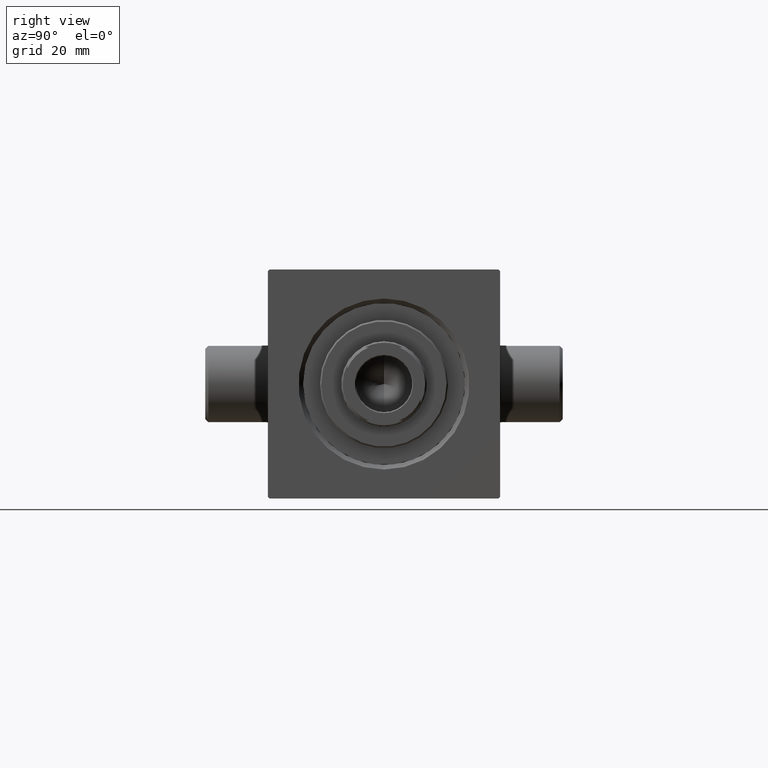
[diagram: clean part render]
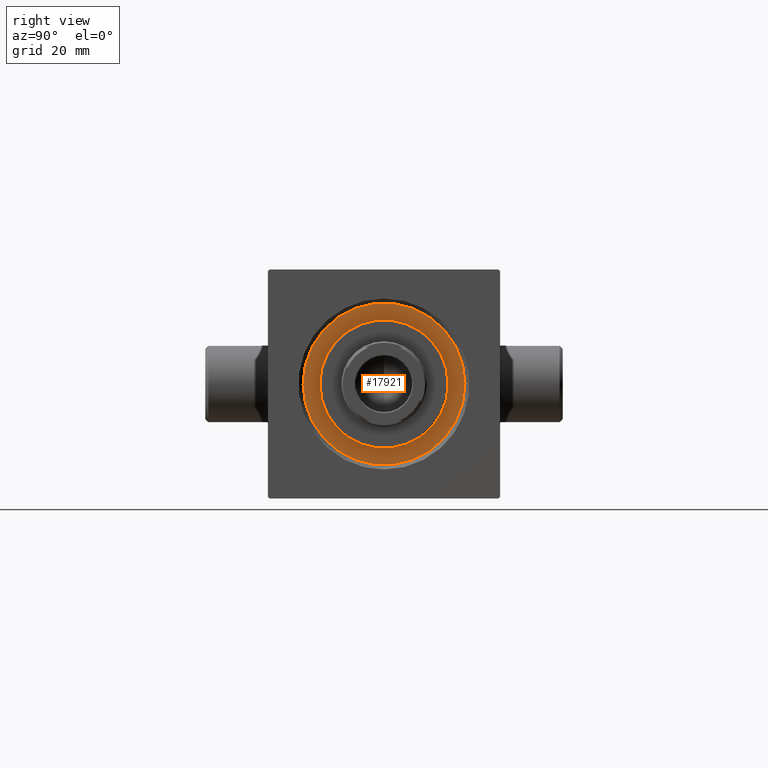
[diagram: same view with one face highlighted and labeled with its STEP entity id]
A machine part, right view. The second image highlights one B-rep face of the part: STEP entity #17921.
In plain terms, the highlighted planar face has unit normal (1, 0, 0).
Its self-contained STEP definition (entity closure, byte-faithful):
#1446 = AXIS2_PLACEMENT_3D ( 'NONE', #32319, #45697, #45929 ) ;
#1657 = VERTEX_POINT ( 'NONE', #36641 ) ;
#1720 = DIRECTION ( 'NONE',  ( 0.000000000000000000, 0.000000000000000000, 1.000000000000000000 ) ) ;
#3830 = ORIENTED_EDGE ( 'NONE', *, *, #44387, .T. ) ;
#4027 = CARTESIAN_POINT ( 'NONE',  ( 26.50000000000000355, 3.245314017740486554E-15, 26.69999999999999929 ) ) ;
#4371 = AXIS2_PLACEMENT_3D ( 'NONE', #37804, #31511, #34072 ) ;
#6824 = CIRCLE ( 'NONE', #15788, 26.50000000000000355 ) ;
#8561 = EDGE_LOOP ( 'NONE', ( #19981, #45656 ) ) ;
#11024 = DIRECTION ( 'NONE',  ( 0.000000000000000000, 0.000000000000000000, 1.000000000000000000 ) ) ;
#11429 = VERTEX_POINT ( 'NONE', #21429 ) ;
#11953 = CARTESIAN_POINT ( 'NONE',  ( 0.000000000000000000, 0.000000000000000000, 26.69999999999999929 ) ) ;
#12236 = EDGE_LOOP ( 'NONE', ( #41681, #3830 ) ) ;
#12814 = FACE_OUTER_BOUND ( 'NONE', #12236, .T. ) ;
#13270 = PLANE ( 'NONE',  #4371 ) ;
#15788 = AXIS2_PLACEMENT_3D ( 'NONE', #11953, #11024, #26202 ) ;
#17921 = ADVANCED_FACE ( 'NONE', ( #34995, #12814 ), #13270, .T. ) ;
#18397 = EDGE_CURVE ( 'NONE', #38114, #1657, #34238, .T. ) ;
#19349 = EDGE_CURVE ( 'NONE', #1657, #38114, #19368, .T. ) ;
#19368 = CIRCLE ( 'NONE', #1446, 21.00000000000000000 ) ;
#19950 = DIRECTION ( 'NONE',  ( 1.000000000000000000, 0.000000000000000000, 0.000000000000000000 ) ) ;
#19981 = ORIENTED_EDGE ( 'NONE', *, *, #18397, .F. ) ;
#21429 = CARTESIAN_POINT ( 'NONE',  ( -26.50000000000000355, 0.000000000000000000, 26.69999999999999929 ) ) ;
#24189 = CARTESIAN_POINT ( 'NONE',  ( -21.00000000000000000, 0.000000000000000000, 26.69999999999999929 ) ) ;
#26202 = DIRECTION ( 'NONE',  ( 1.000000000000000000, 0.000000000000000000, 0.000000000000000000 ) ) ;
#26247 = DIRECTION ( 'NONE',  ( 1.000000000000000000, 0.000000000000000000, 0.000000000000000000 ) ) ;
#31163 = CARTESIAN_POINT ( 'NONE',  ( 0.000000000000000000, 0.000000000000000000, 26.69999999999999929 ) ) ;
#31511 = DIRECTION ( 'NONE',  ( 0.000000000000000000, 0.000000000000000000, 1.000000000000000000 ) ) ;
#32319 = CARTESIAN_POINT ( 'NONE',  ( 0.000000000000000000, 0.000000000000000000, 26.69999999999999929 ) ) ;
#32739 = AXIS2_PLACEMENT_3D ( 'NONE', #31163, #1720, #19950 ) ;
#33041 = VERTEX_POINT ( 'NONE', #4027 ) ;
#33483 = DIRECTION ( 'NONE',  ( 0.000000000000000000, 0.000000000000000000, 1.000000000000000000 ) ) ;
#34072 = DIRECTION ( 'NONE',  ( 1.000000000000000000, 0.000000000000000000, -0.000000000000000000 ) ) ;
#34238 = CIRCLE ( 'NONE', #32739, 21.00000000000000000 ) ;
#34995 = FACE_BOUND ( 'NONE', #8561, .T. ) ;
#36641 = CARTESIAN_POINT ( 'NONE',  ( 21.00000000000000000, 2.571758278209441661E-15, 26.69999999999999929 ) ) ;
#36986 = CARTESIAN_POINT ( 'NONE',  ( 0.000000000000000000, 0.000000000000000000, 26.69999999999999929 ) ) ;
#37804 = CARTESIAN_POINT ( 'NONE',  ( 0.000000000000000000, 0.000000000000000000, 26.69999999999999929 ) ) ;
#38114 = VERTEX_POINT ( 'NONE', #24189 ) ;
#39784 = CIRCLE ( 'NONE', #45799, 26.50000000000000355 ) ;
#40417 = EDGE_CURVE ( 'NONE', #11429, #33041, #6824, .T. ) ;
#41681 = ORIENTED_EDGE ( 'NONE', *, *, #40417, .T. ) ;
#44387 = EDGE_CURVE ( 'NONE', #33041, #11429, #39784, .T. ) ;
#45656 = ORIENTED_EDGE ( 'NONE', *, *, #19349, .F. ) ;
#45697 = DIRECTION ( 'NONE',  ( 0.000000000000000000, 0.000000000000000000, 1.000000000000000000 ) ) ;
#45799 = AXIS2_PLACEMENT_3D ( 'NONE', #36986, #33483, #26247 ) ;
#45929 = DIRECTION ( 'NONE',  ( 1.000000000000000000, 0.000000000000000000, 0.000000000000000000 ) ) ;